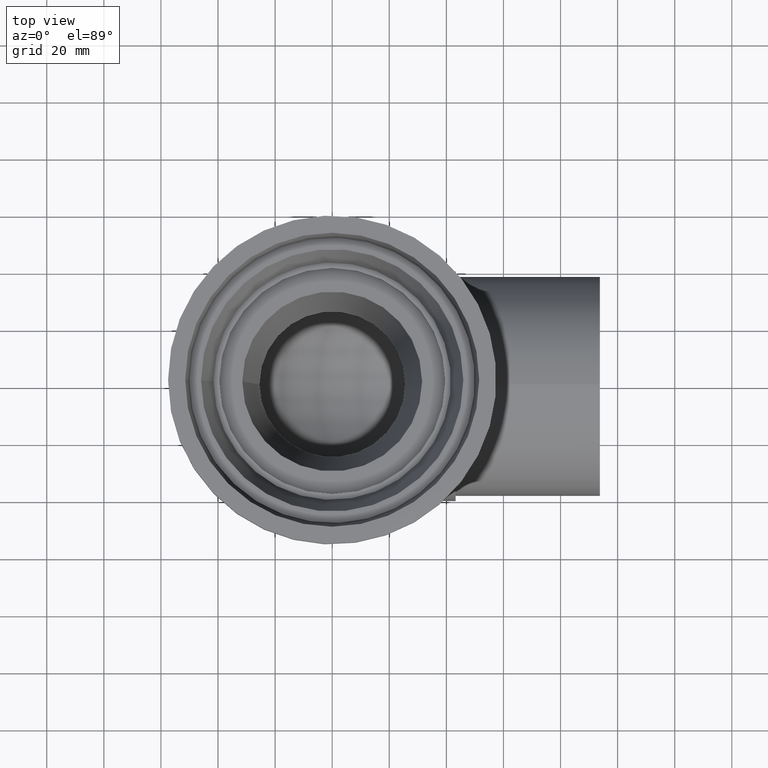
[diagram: clean part render]
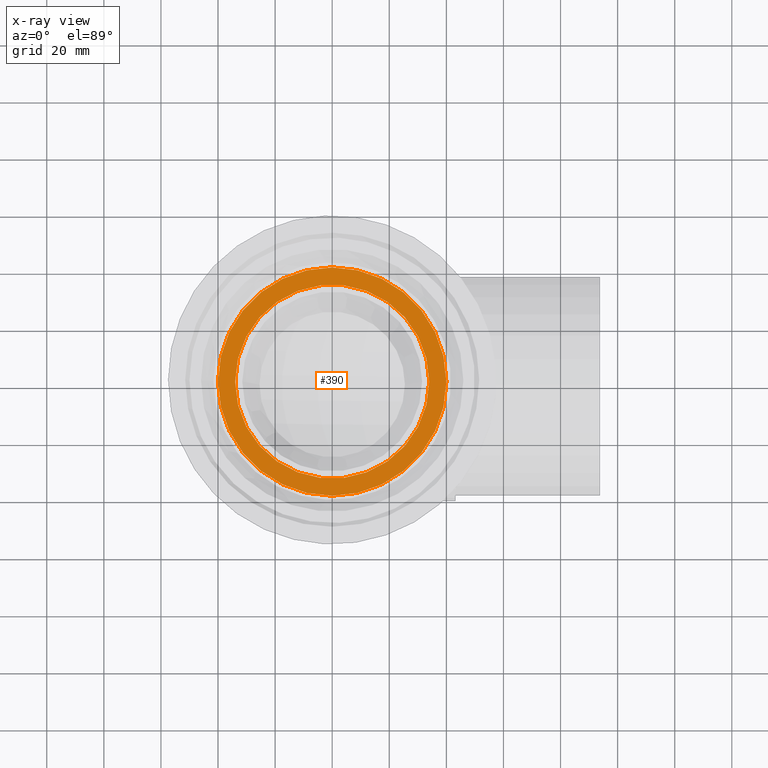
[diagram: x-ray — body ghosted, one internal face saturated and labeled with its STEP entity id]
A machine part, top view, then the same camera in x-ray: the body is ghosted and one INTERNAL B-rep face — a face not visible from any outside direction — is saturated and labeled: STEP entity #390.
In plain terms, the highlighted planar face has unit normal (0, 0, -1).
Its self-contained STEP definition (entity closure, byte-faithful):
#44=ORIENTED_EDGE('',*,*,#120,.F.);
#45=ORIENTED_EDGE('',*,*,#121,.F.);
#120=EDGE_CURVE('',#158,#158,#194,.T.);
#121=EDGE_CURVE('',#159,#159,#195,.T.);
#158=VERTEX_POINT('',#674);
#159=VERTEX_POINT('',#676);
#194=CIRCLE('',#443,40.);
#195=CIRCLE('',#444,33.99);
#231=EDGE_LOOP('',(#44));
#232=EDGE_LOOP('',(#45));
#303=FACE_BOUND('',#231,.T.);
#304=FACE_BOUND('',#232,.T.);
#375=PLANE('',#442);
#390=ADVANCED_FACE('',(#303,#304),#375,.T.);
#442=AXIS2_PLACEMENT_3D('',#672,#522,#523);
#443=AXIS2_PLACEMENT_3D('',#673,#524,#525);
#444=AXIS2_PLACEMENT_3D('',#675,#526,#527);
#522=DIRECTION('',(0.,0.,-1.));
#523=DIRECTION('',(-1.,0.,0.));
#524=DIRECTION('',(0.,0.,1.));
#525=DIRECTION('',(1.,0.,0.));
#526=DIRECTION('',(0.,0.,-1.));
#527=DIRECTION('',(-1.,0.,0.));
#672=CARTESIAN_POINT('',(-33.99,0.,-39.5));
#673=CARTESIAN_POINT('',(0.,0.,-39.5));
#674=CARTESIAN_POINT('',(40.,0.,-39.5));
#675=CARTESIAN_POINT('',(0.,0.,-39.5));
#676=CARTESIAN_POINT('',(-33.99,0.,-39.5));